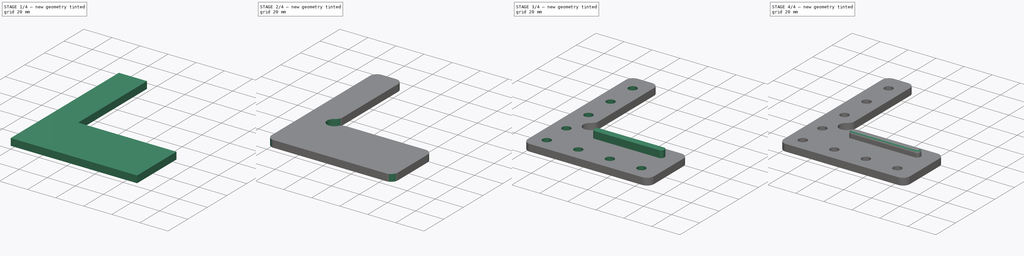
[diagram: build sequence overview — one tinted view per stage of 4, left to right]
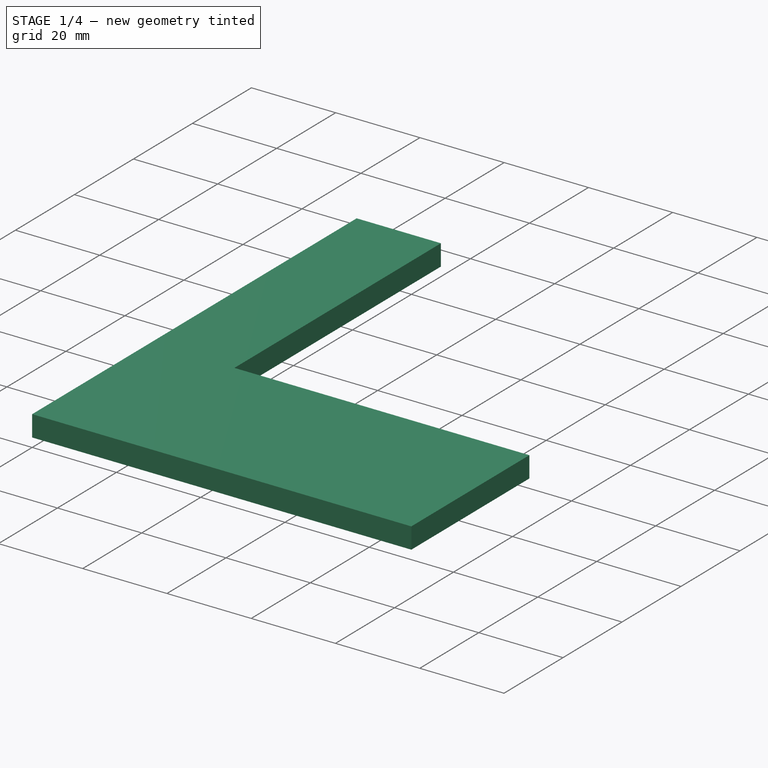
[diagram: stage 1 of 4 — iso view after this stage's code; geometry added in this stage tinted green]
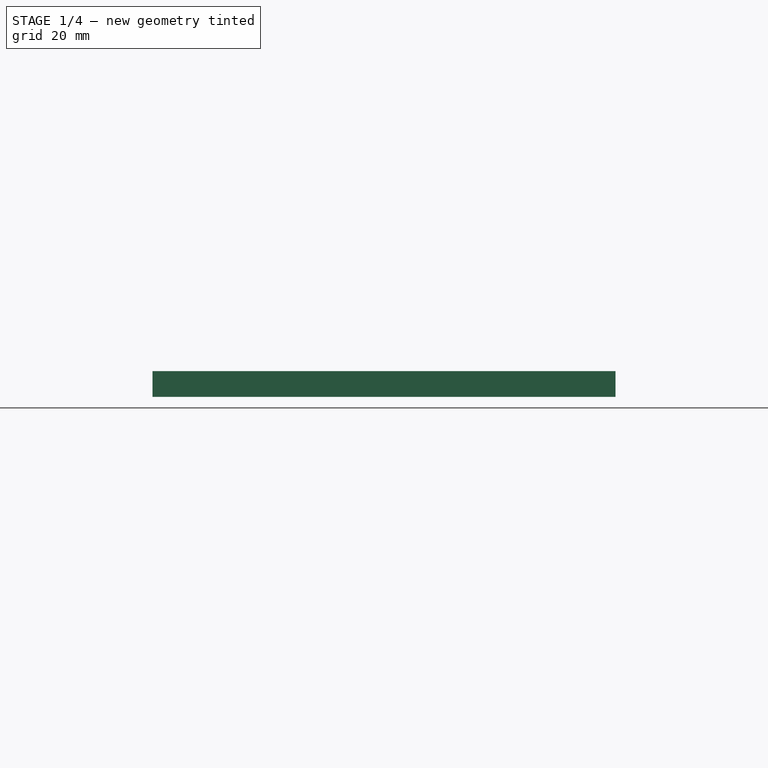
[diagram: stage 1 of 4 — front view after this stage's code; geometry added in this stage tinted green]
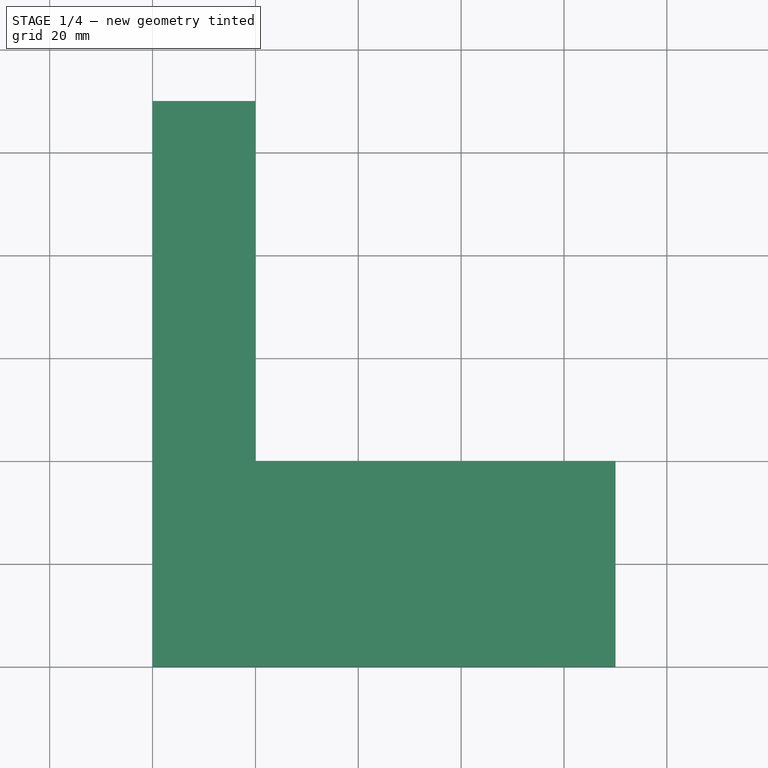
[diagram: stage 1 of 4 — top view after this stage's code; geometry added in this stage tinted green]
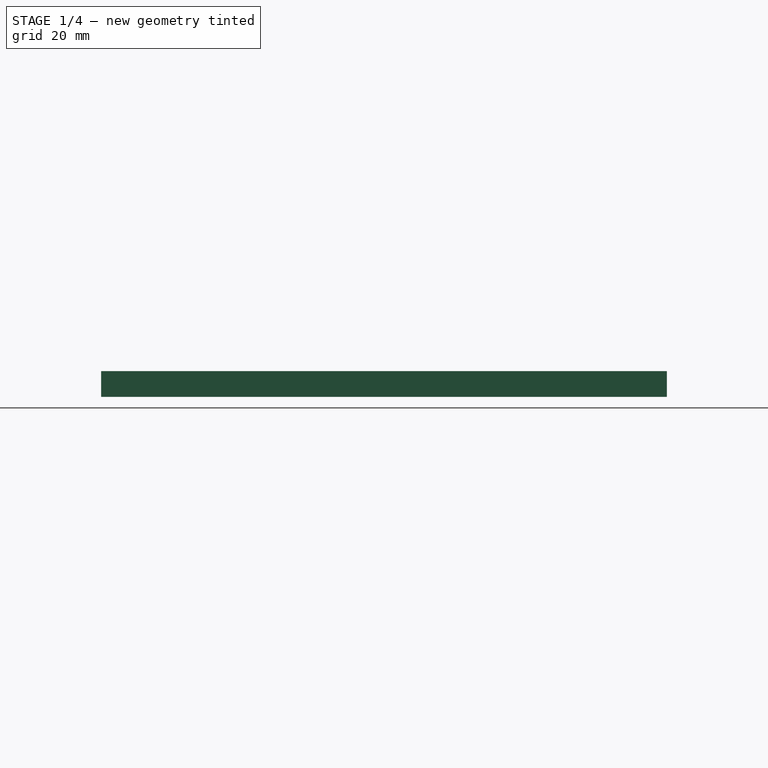
[diagram: stage 1 of 4 — right view after this stage's code; geometry added in this stage tinted green]
FCSTD DOCUMENT  (FreeCAD 0.17R7796 (Git))
Label: frame_corner_slide_stop_top
License: CreativeCommons Attribution-ShareAlike
LicenseURL: http://creativecommons.org/licenses/by-sa/4.0/
objects: Sketcher::SketchObject×5, PartDesign::Fillet×4, PartDesign::Pocket×3, PartDesign::Pad×2, PartDesign::Body×1
note: 20 computed .brp shape members not serialized (recipe doc carries the construction recipe); baked Part::Feature solids carry a one-line shape summary decoded from their .brp

FEATURE [Sketcher::SketchObject] Sketch
  MapMode = 5
  Support = -> [XY_Plane]
  sketch-geometry (4):
    g0: LineSegment StartX=0 StartY=90 StartZ=0 EndX=90 EndY=90 EndZ=0
    g1: LineSegment StartX=90 StartY=90 StartZ=0 EndX=90 EndY=-20 EndZ=0
    g2: LineSegment StartX=90 StartY=-20 StartZ=0 EndX=0 EndY=-20 EndZ=0
    g3: LineSegment StartX=0 StartY=-20 StartZ=0 EndX=0 EndY=90 EndZ=0
  constraints (12):
    c: Coincident(g0,g1)
    c: Coincident(g1,g2)
    c: Coincident(g2,g3)
    c: Coincident(g3,g0)
    c: Horizontal(g0)
    c: Horizontal(g2)
    c: Vertical(g1)
    c: Vertical(g3)
    c: DistanceY(g3,g3) = 110
    c: DistanceX(g2,g2) = 90
    c: PointOnObject(g2,g-2)
    c: DistanceY(g2,g-1) = 20
FEATURE [PartDesign::Pad] Pad
  Length = 5
  Length2 = 100
  Profile = -> Sketch
  Type = 0
FEATURE [Sketcher::SketchObject] Sketch001
  MapMode = 5
  Placement = pos=(0,0,5) rot=(0,0,1;0rad)
  Support = -> [Pad]
  sketch-geometry (4):
    g0: LineSegment StartX=20 StartY=110 StartZ=0 EndX=110 EndY=110 EndZ=0
    g1: LineSegment StartX=110 StartY=110 StartZ=0 EndX=110 EndY=20 EndZ=0
    g2: LineSegment StartX=110 StartY=20 StartZ=0 EndX=20 EndY=20 EndZ=0
    g3: LineSegment StartX=20 StartY=20 StartZ=0 EndX=20 EndY=110 EndZ=0
  constraints (12):
    c: Coincident(g0,g1)
    c: Coincident(g1,g2)
    c: Coincident(g2,g3)
    c: Coincident(g3,g0)
    c: Horizontal(g0)
    c: Horizontal(g2)
    c: Vertical(g1)
    c: Vertical(g3)
    c: DistanceX(g-1,g2) = 20
    c: DistanceY(g-1,g2) = 20
    c: Equal(g3,g2)
    c: DistanceY(g3,g3) = 90
FEATURE [PartDesign::Pocket] Pocket
  BaseFeature = -> Pad
  Length = 5
  Profile = -> Sketch001
  Type = 0
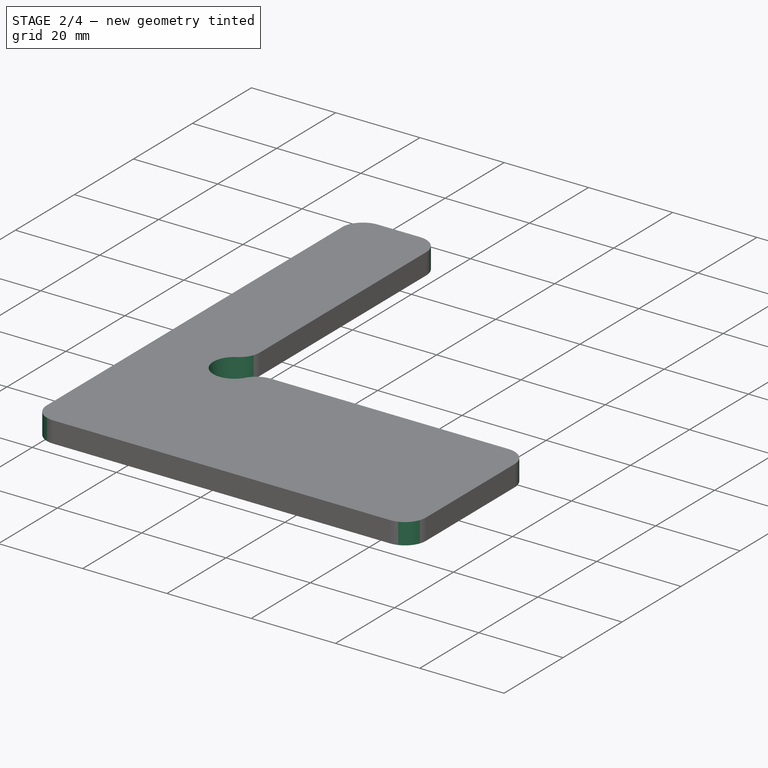
[diagram: stage 2 of 4 — iso view after this stage's code; geometry added in this stage tinted green]
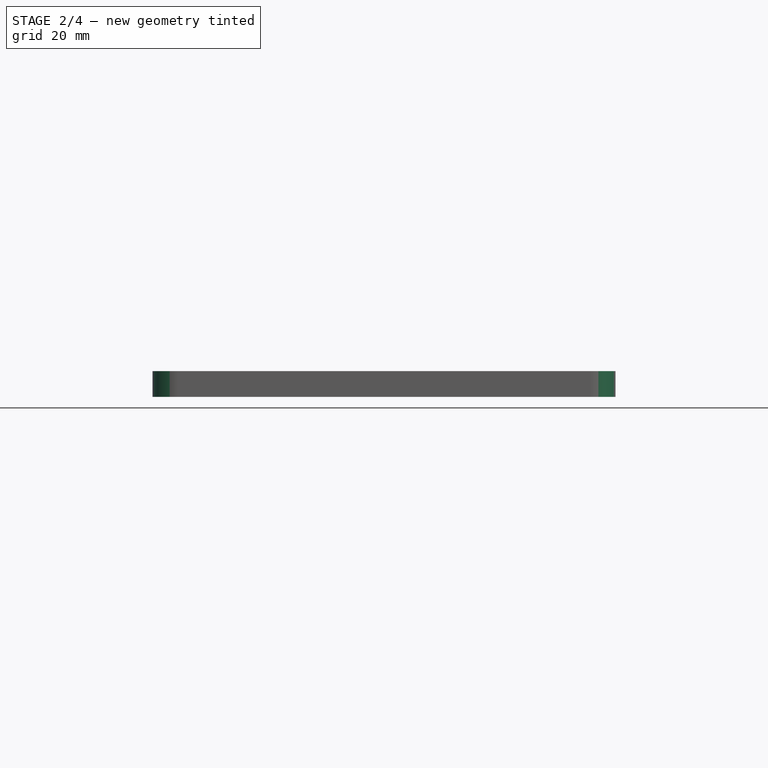
[diagram: stage 2 of 4 — front view after this stage's code; geometry added in this stage tinted green]
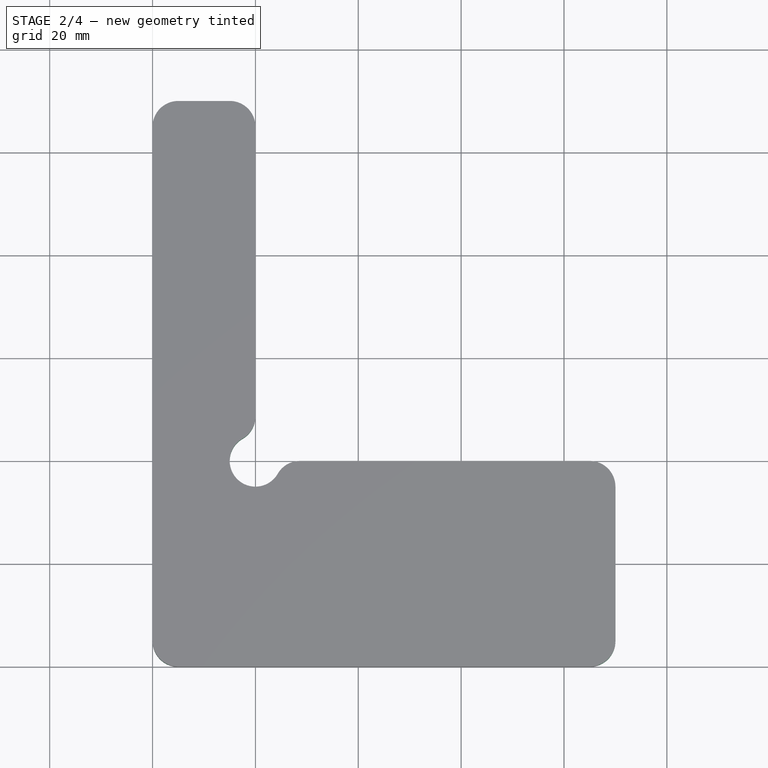
[diagram: stage 2 of 4 — top view after this stage's code; geometry added in this stage tinted green]
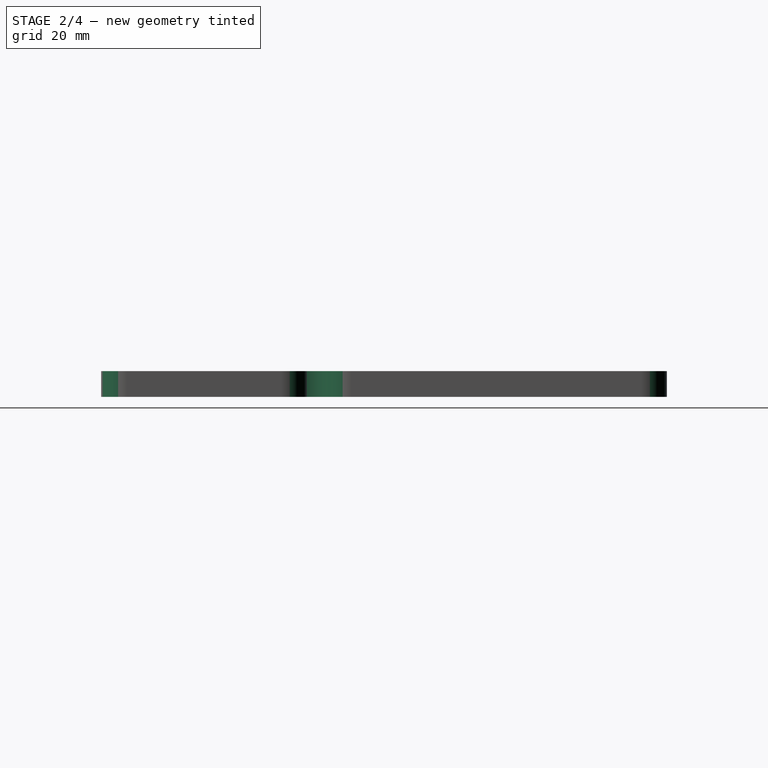
[diagram: stage 2 of 4 — right view after this stage's code; geometry added in this stage tinted green]
FEATURE [Sketcher::SketchObject] Sketch002
  ExternalGeometry = -> [Pocket]
  MapMode = 5
  Placement = pos=(0,0,5) rot=(0,0,1;0rad)
  Support = -> [Pocket]
  sketch-geometry (1):
    g0: Circle CenterX=20 CenterY=20 CenterZ=0 NormalX=0 NormalY=0 NormalZ=1 Radius=5
  constraints (2):
    c: Coincident(g-3,g0)
    c: Radius(g0) = 5
FEATURE [PartDesign::Pocket] Pocket001
  BaseFeature = -> Pocket
  Length = 5
  Profile = -> Sketch002
  Type = 0
FEATURE [PartDesign::Fillet] Fillet
  Base = -> Pocket001 [Edge12,Edge19,Edge18,Edge20,Edge21,Edge2,Edge4]
  BaseFeature = -> Pocket001
  Radius = 5
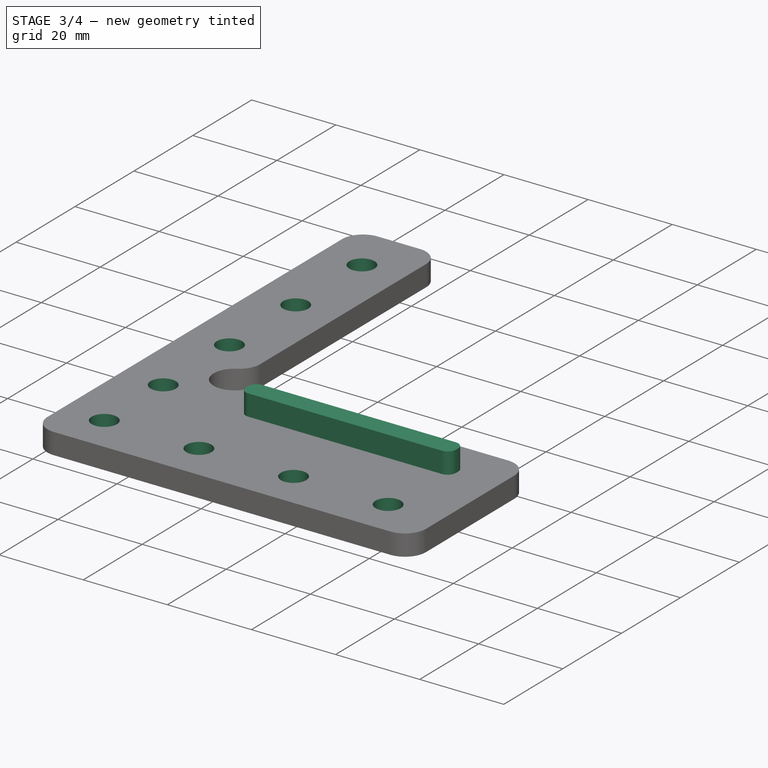
[diagram: stage 3 of 4 — iso view after this stage's code; geometry added in this stage tinted green]
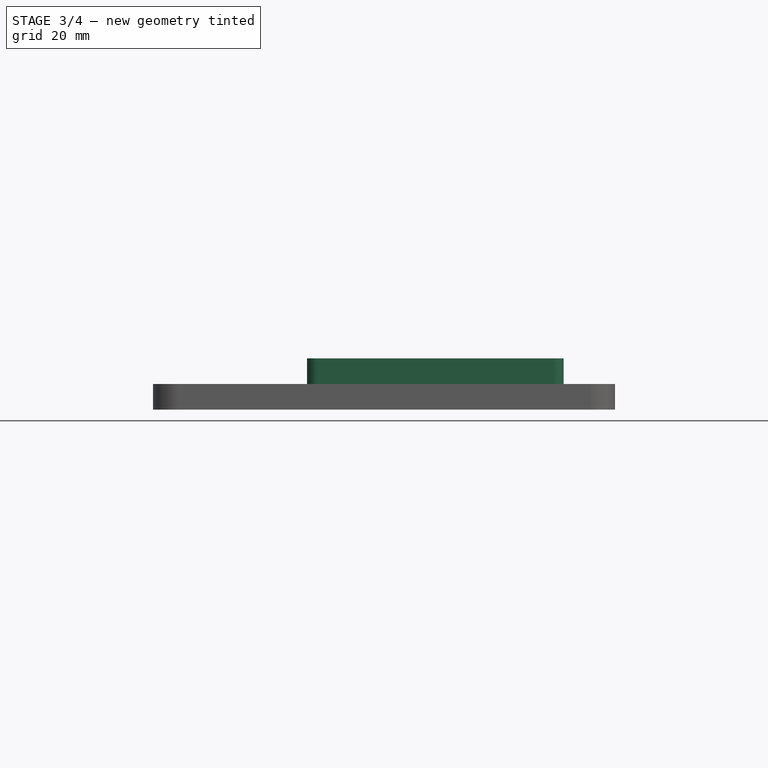
[diagram: stage 3 of 4 — front view after this stage's code; geometry added in this stage tinted green]
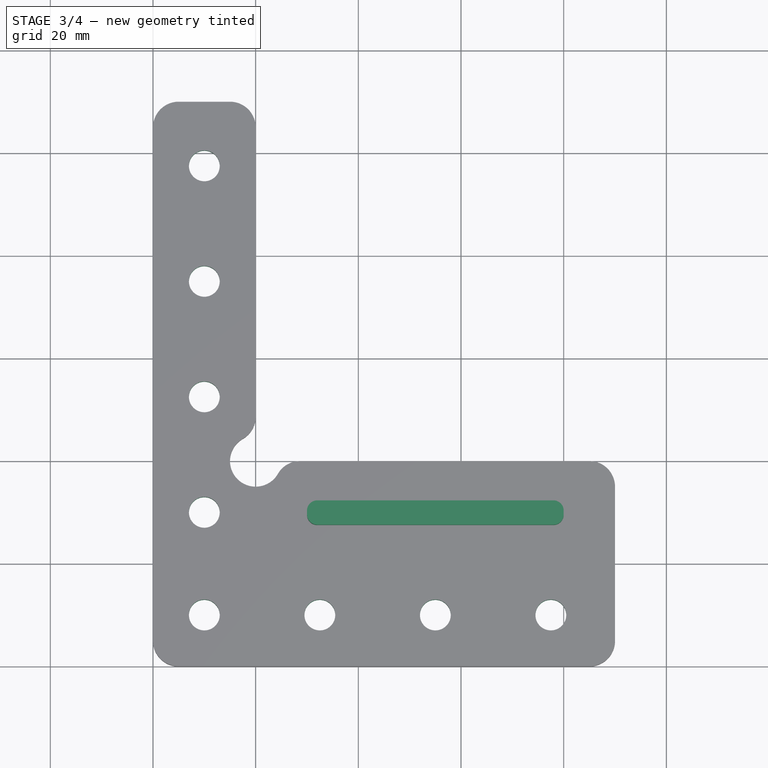
[diagram: stage 3 of 4 — top view after this stage's code; geometry added in this stage tinted green]
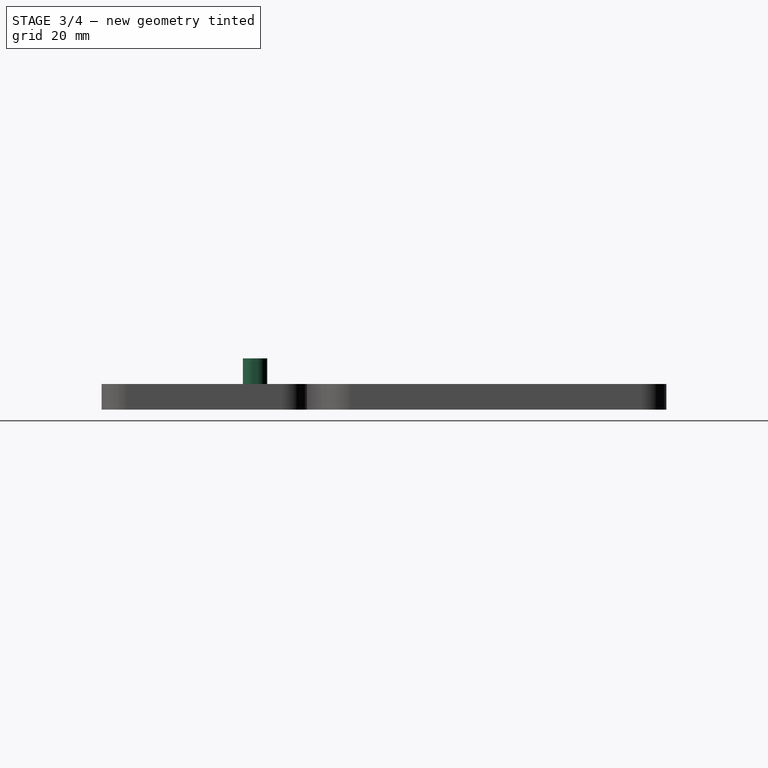
[diagram: stage 3 of 4 — right view after this stage's code; geometry added in this stage tinted green]
FEATURE [Sketcher::SketchObject] Sketch003
  MapMode = 5
  Placement = pos=(0,0,0) rot=(1,0,0;3.14159rad)
  Support = -> [Fillet]
  sketch-geometry (12):
    g0: LineSegment [constr] StartX=10 StartY=-10 StartZ=0 EndX=85 EndY=-10 EndZ=0
    g1: LineSegment [constr] StartX=10 StartY=-10 StartZ=0 EndX=10 EndY=-85 EndZ=0
    g2: Circle CenterX=10 CenterY=-32.5 CenterZ=0 NormalX=0 NormalY=0 NormalZ=1 Radius=3
    g3: Circle CenterX=10 CenterY=-55 CenterZ=0 NormalX=0 NormalY=0 NormalZ=1 Radius=3
    g4: Circle CenterX=10 CenterY=-77.5 CenterZ=0 NormalX=0 NormalY=0 NormalZ=1 Radius=3
    g5: Circle CenterX=10 CenterY=-10 CenterZ=0 NormalX=0 NormalY=0 NormalZ=1 Radius=3
    g6: LineSegment [constr] StartX=10 StartY=-10 StartZ=0 EndX=10 EndY=10 EndZ=0
    g7: LineSegment [constr] StartX=10 StartY=10 StartZ=0 EndX=85 EndY=10 EndZ=0
    g8: Circle CenterX=10 CenterY=10 CenterZ=0 NormalX=0 NormalY=0 NormalZ=1 Radius=3
    g9: Circle CenterX=32.5 CenterY=10 CenterZ=0 NormalX=0 NormalY=0 NormalZ=1 Radius=3
    g10: Circle CenterX=55 CenterY=10 CenterZ=0 NormalX=0 NormalY=0 NormalZ=1 Radius=3
    g11: Circle CenterX=77.5 CenterY=10 CenterZ=0 NormalX=0 NormalY=0 NormalZ=1 Radius=3
  constraints (35):
    c: Horizontal(g0)
    c: Vertical(g1)
    c: Coincident(g0,g1)
    c: DistanceY(g0,g-1) = 10
    c: DistanceX(g-1,g0) = 10
    c: PointOnObject(g4,g1)
    c: PointOnObject(g3,g1)
    c: PointOnObject(g2,g1)
    c: Radius(g3) = 3
    c: Equal(g3,g2)
    c: Equal(g3,g4)
    c: DistanceY(g2,g0) = 22.5
    c: DistanceY(g3,g2) = 22.5
    c: DistanceY(g4,g3) = 22.5
    c: DistanceX(g0,g0) = 75
    c: DistanceY(g1,g1) = 75
    c: Coincident(g5,g0)
    c: Equal(g5,g2)
    c: Horizontal(g7)
    c: Vertical(g6)
    c: Coincident(g6,g0)
    c: Coincident(g6,g7)
    c: DistanceY(g6,g6) = 20
    c: DistanceX(g7,g0) = 0
    c: Coincident(g8,g6)
    c: PointOnObject(g9,g7)
    c: PointOnObject(g11,g7)
    c: PointOnObject(g10,g7)
    c: Radius(g8) = 3
    c: Equal(g8,g9)
    c: Equal(g8,g10)
    c: Equal(g8,g11)
    c: DistanceX(g6,g9) = 22.5
    c: DistanceX(g9,g10) = 22.5
    c: DistanceX(g10,g11) = 22.5
FEATURE [PartDesign::Pocket] Pocket002
  BaseFeature = -> Fillet
  Length = 5
  Profile = -> Sketch003
  Type = 0
FEATURE [Sketcher::SketchObject] Sketch004
  MapMode = 5
  Placement = pos=(0,0,5) rot=(0,0,1;0rad)
  Support = -> [Pocket002]
  sketch-geometry (4):
    g0: LineSegment StartX=30 StartY=12.25 StartZ=0 EndX=80 EndY=12.25 EndZ=0
    g1: LineSegment StartX=80 StartY=12.25 StartZ=0 EndX=80 EndY=7.5 EndZ=0
    g2: LineSegment StartX=80 StartY=7.5 StartZ=0 EndX=30 EndY=7.5 EndZ=0
    g3: LineSegment StartX=30 StartY=7.5 StartZ=0 EndX=30 EndY=12.25 EndZ=0
  constraints (12):
    c: Coincident(g0,g1)
    c: Coincident(g1,g2)
    c: Coincident(g2,g3)
    c: Coincident(g3,g0)
    c: Horizontal(g0)
    c: Horizontal(g2)
    c: Vertical(g1)
    c: Vertical(g3)
    c: DistanceY(g3,g3) = 4.75
    c: DistanceX(g2,g2) = 50
    c: DistanceY(g-1,g2) = 7.5
    c: DistanceX(g-1,g2) = 30
FEATURE [PartDesign::Pad] Pad001
  BaseFeature = -> Pocket002
  Length = 5
  Length2 = 100
  Profile = -> Sketch004
  Type = 0
FEATURE [PartDesign::Fillet] Fillet001
  Base = -> Pad001 [Edge71,Edge74,Edge76,Edge73]
  BaseFeature = -> Pad001
  Radius = 2
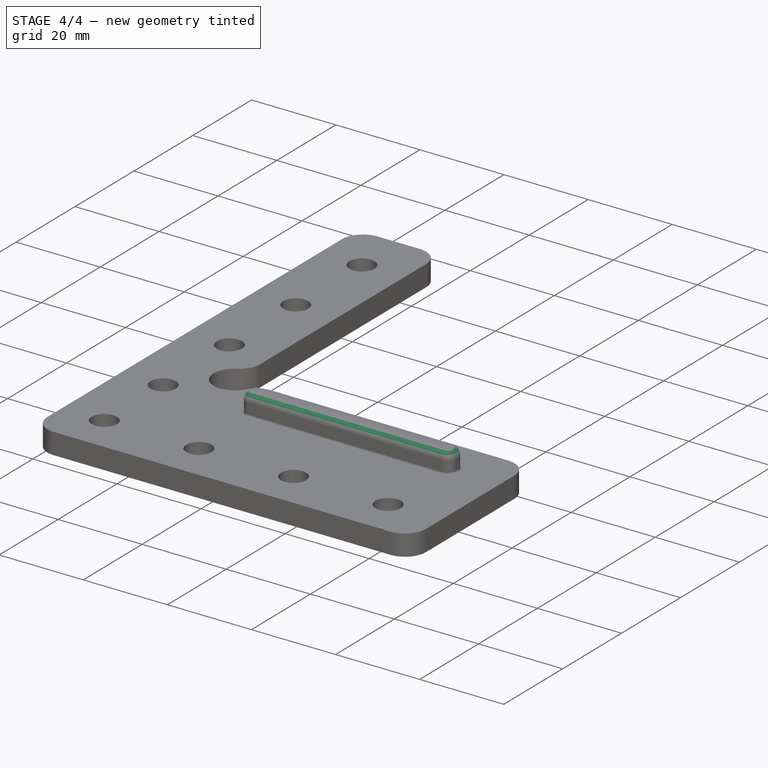
[diagram: stage 4 of 4 — iso view after this stage's code; geometry added in this stage tinted green]
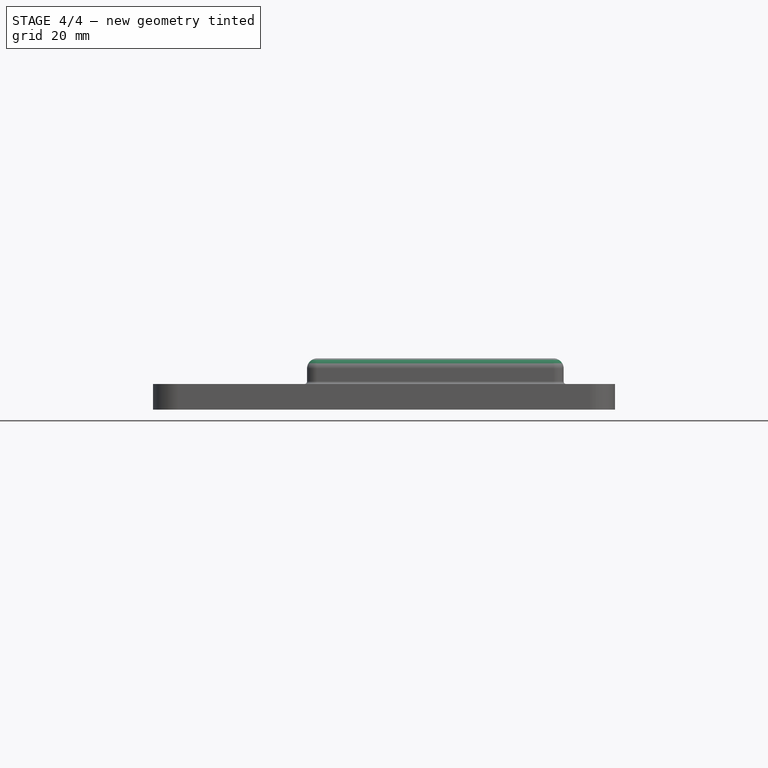
[diagram: stage 4 of 4 — front view after this stage's code; geometry added in this stage tinted green]
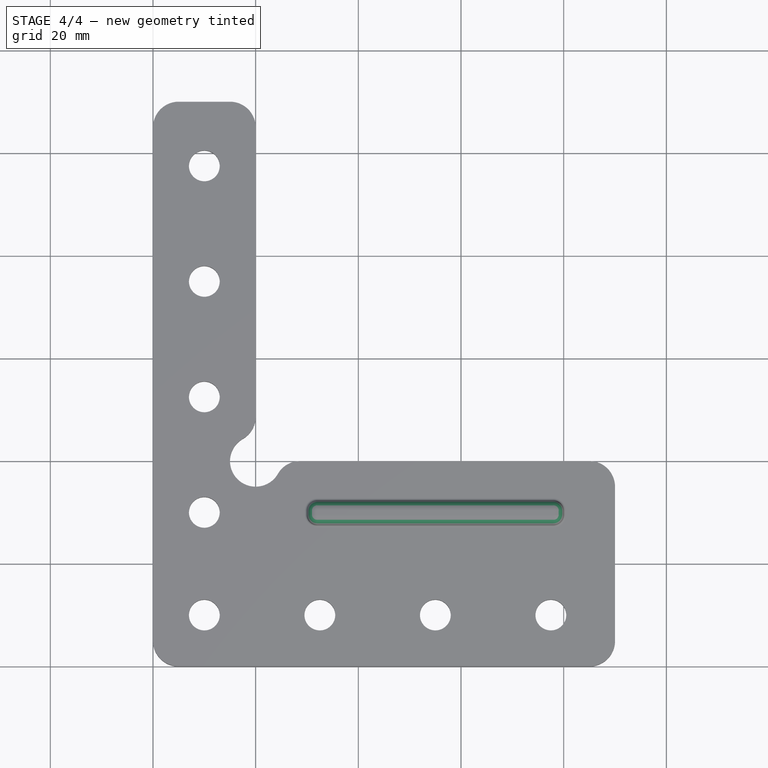
[diagram: stage 4 of 4 — top view after this stage's code; geometry added in this stage tinted green]
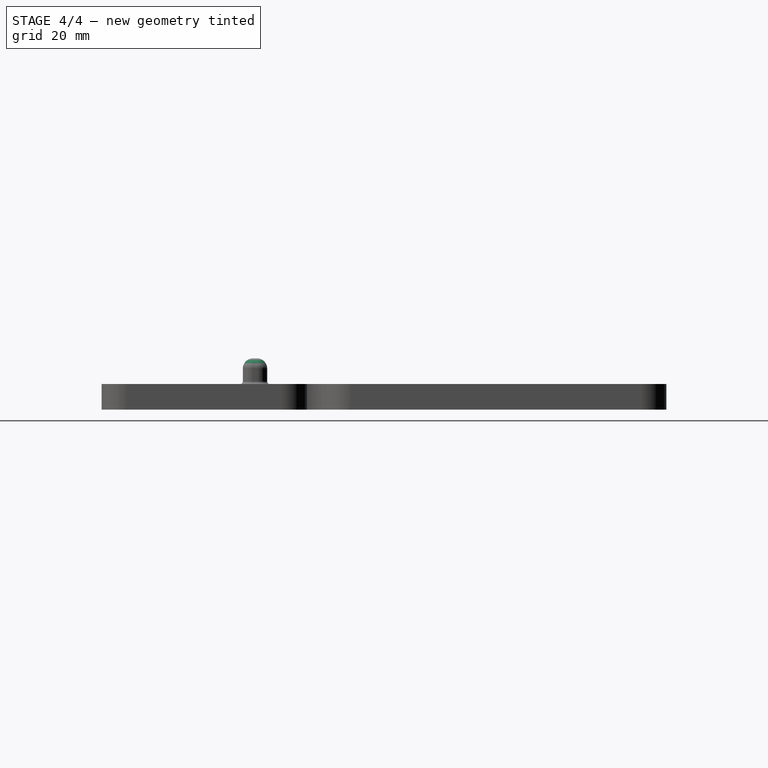
[diagram: stage 4 of 4 — right view after this stage's code; geometry added in this stage tinted green]
FEATURE [PartDesign::Fillet] Fillet002
  Base = -> Fillet001 [Face32]
  BaseFeature = -> Fillet001
  Radius = 2
FEATURE [PartDesign::Fillet] Fillet003
  Base = -> Fillet002 [Edge11,Edge13,Edge15,Edge3,Edge6,Edge14,Edge12,Edge16]
  BaseFeature = -> Fillet002
  Radius = 0.5
FEATURE [PartDesign::Body] Body
  Model = -> [Sketch,Pad,Sketch001,Pocket,Sketch002,Pocket001,Fillet,Sketch003,Pocket002,Sketch004,Pad001,Fillet001,Fillet002,Fillet003]
  Origin = -> BodyOrigin
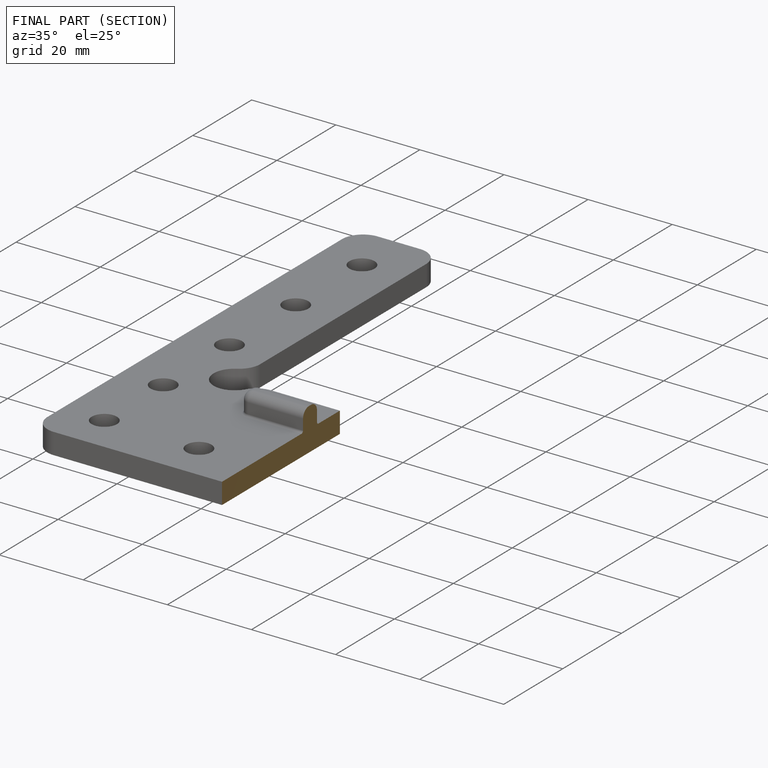
[diagram: finished part — half-section view (interior)]
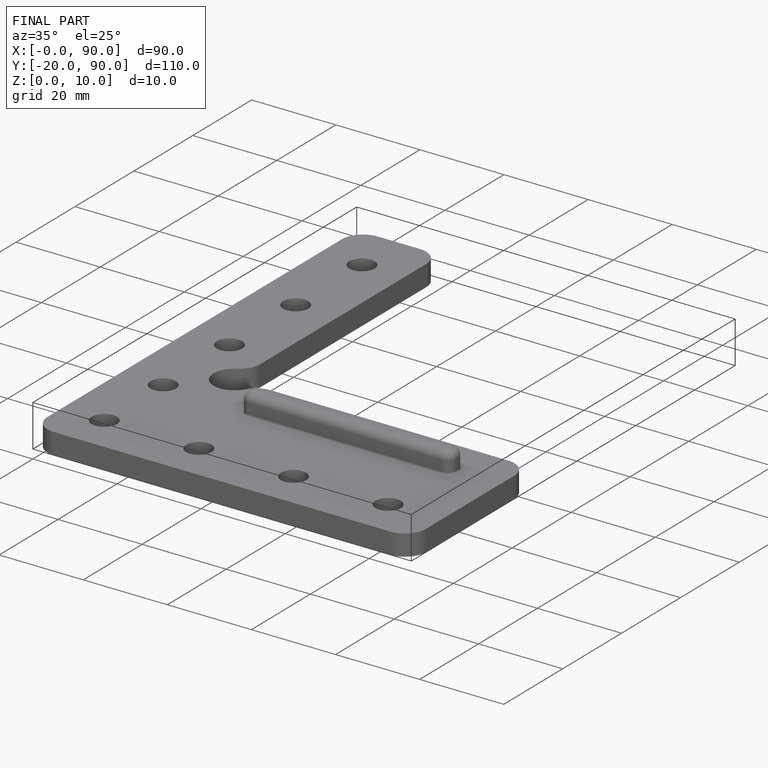
[diagram: finished part — iso view with bounding-box wireframe]
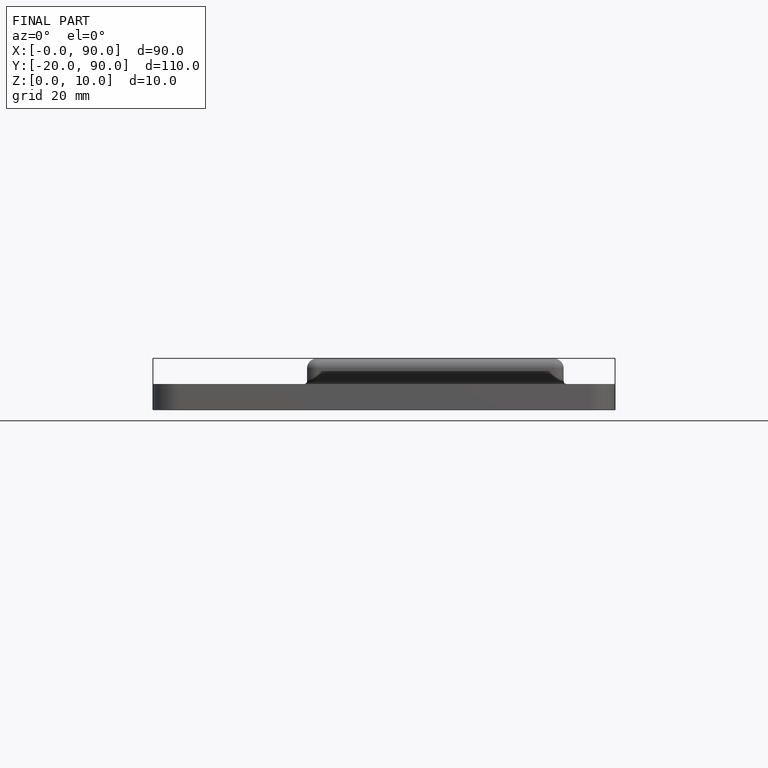
[diagram: finished part — front view with bounding-box wireframe]
